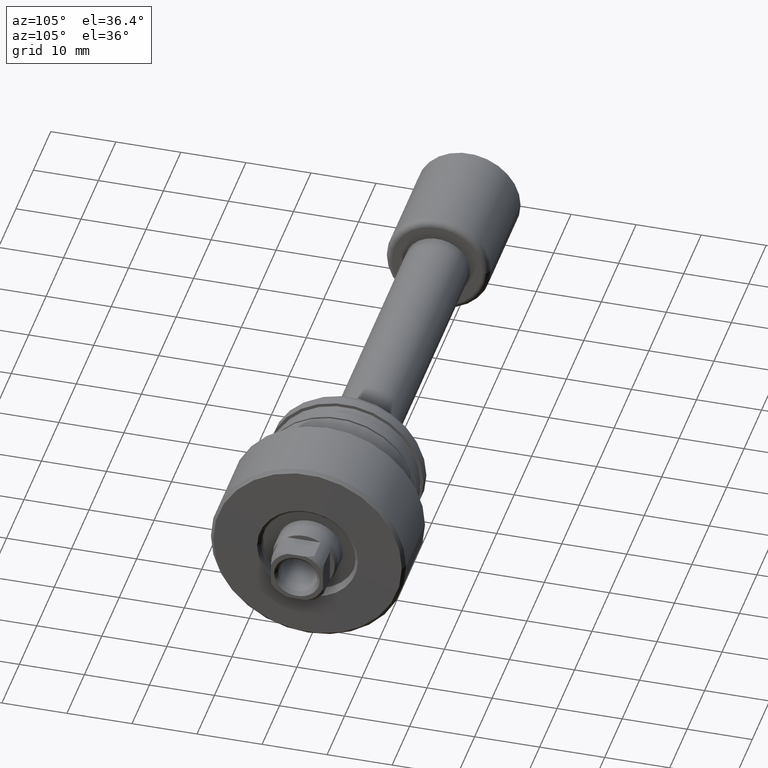
[diagram: clean part render]
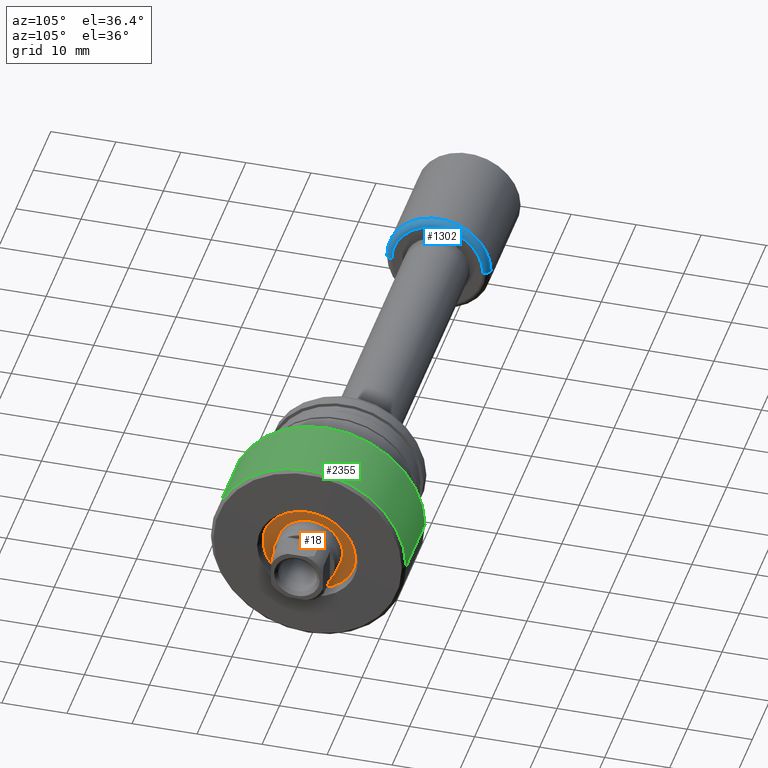
[diagram: same view with three faces highlighted in distinct colors, each labeled with its STEP entity id]
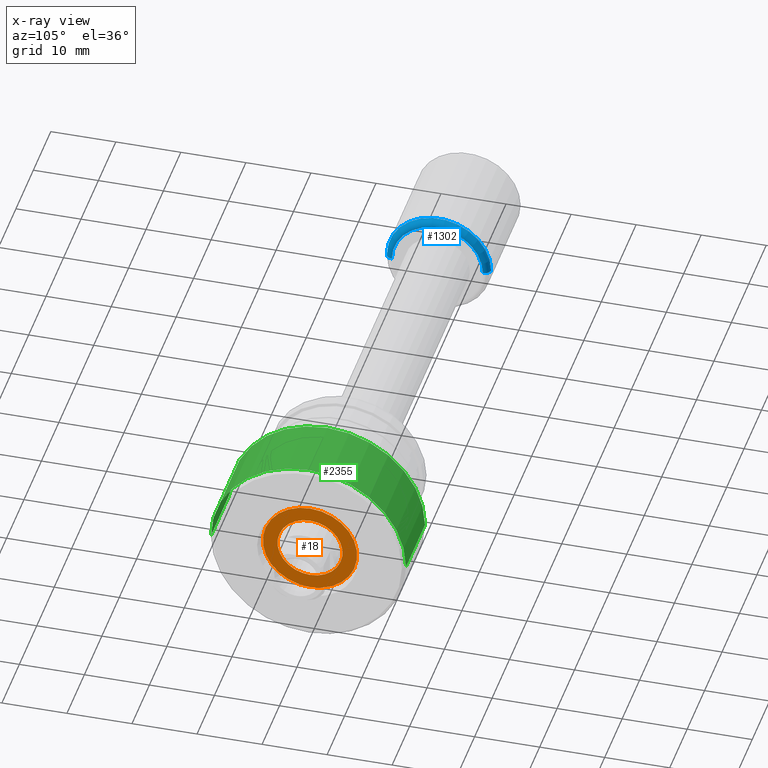
[diagram: x-ray of the same camera — body ghosted, the three highlighted faces saturated]
A machine part, auxiliary view with three faces highlighted in distinct colors.
The next image is the same camera in x-ray (body ghosted, the three faces saturated) — at least one of them is partly hidden behind the body in this view.
Their STEP definitions:

[orange] entity #18 — the highlighted planar face has unit normal (1, 0, 0).
#18 = ADVANCED_FACE ( 'NONE', ( #335, #1860 ), #1824, .T. ) ;
#62 = CARTESIAN_POINT ( 'NONE',  ( -1.500000000000000000, 0.000000000000000000, -5.000000000000000000 ) ) ;
#99 = EDGE_CURVE ( 'NONE', #2229, #590, #2347, .T. ) ;
#113 = ORIENTED_EDGE ( 'NONE', *, *, #844, .F. ) ;
#119 = CIRCLE ( 'NONE', #1274, 5.000000000000000000 ) ;
#141 = DIRECTION ( 'NONE',  ( 0.000000000000000000, 0.000000000000000000, -1.000000000000000000 ) ) ;
#151 = DIRECTION ( 'NONE',  ( 0.000000000000000000, 0.000000000000000000, -1.000000000000000000 ) ) ;
#247 = CARTESIAN_POINT ( 'NONE',  ( -1.500000000000000000, 8.878689293818310074E-16, 7.250000000000000000 ) ) ;
#335 = FACE_BOUND ( 'NONE', #1932, .T. ) ;
#378 = CARTESIAN_POINT ( 'NONE',  ( -1.500000000000000000, 0.000000000000000000, 0.000000000000000000 ) ) ;
#590 = VERTEX_POINT ( 'NONE', #247 ) ;
#617 = AXIS2_PLACEMENT_3D ( 'NONE', #749, #2227, #151 ) ;
#637 = EDGE_CURVE ( 'NONE', #590, #2229, #2445, .T. ) ;
#732 = DIRECTION ( 'NONE',  ( 0.000000000000000000, 0.000000000000000000, -1.000000000000000000 ) ) ;
#749 = CARTESIAN_POINT ( 'NONE',  ( -1.500000000000000000, 0.000000000000000000, 0.000000000000000000 ) ) ;
#802 = CIRCLE ( 'NONE', #1431, 5.000000000000000000 ) ;
#825 = EDGE_LOOP ( 'NONE', ( #1826, #1128 ) ) ;
#844 = EDGE_CURVE ( 'NONE', #2222, #1760, #119, .T. ) ;
#859 = CARTESIAN_POINT ( 'NONE',  ( -1.500000000000000000, 0.000000000000000000, 0.000000000000000000 ) ) ;
#1128 = ORIENTED_EDGE ( 'NONE', *, *, #637, .T. ) ;
#1178 = EDGE_CURVE ( 'NONE', #1760, #2222, #802, .T. ) ;
#1272 = AXIS2_PLACEMENT_3D ( 'NONE', #1482, #1695, #732 ) ;
#1274 = AXIS2_PLACEMENT_3D ( 'NONE', #859, #1777, #1610 ) ;
#1431 = AXIS2_PLACEMENT_3D ( 'NONE', #1859, #1490, #141 ) ;
#1482 = CARTESIAN_POINT ( 'NONE',  ( -1.500000000000000000, 0.000000000000000000, 0.000000000000000000 ) ) ;
#1490 = DIRECTION ( 'NONE',  ( 1.000000000000000000, 0.000000000000000000, 0.000000000000000000 ) ) ;
#1591 = ORIENTED_EDGE ( 'NONE', *, *, #1178, .F. ) ;
#1598 = CARTESIAN_POINT ( 'NONE',  ( -1.500000000000000000, 6.123233995736766282E-16, 5.000000000000000000 ) ) ;
#1610 = DIRECTION ( 'NONE',  ( 0.000000000000000000, 0.000000000000000000, -1.000000000000000000 ) ) ;
#1695 = DIRECTION ( 'NONE',  ( 1.000000000000000000, 0.000000000000000000, 0.000000000000000000 ) ) ;
#1732 = AXIS2_PLACEMENT_3D ( 'NONE', #378, #1888, #1922 ) ;
#1760 = VERTEX_POINT ( 'NONE', #1598 ) ;
#1777 = DIRECTION ( 'NONE',  ( 1.000000000000000000, 0.000000000000000000, 0.000000000000000000 ) ) ;
#1824 = PLANE ( 'NONE',  #617 ) ;
#1826 = ORIENTED_EDGE ( 'NONE', *, *, #99, .T. ) ;
#1859 = CARTESIAN_POINT ( 'NONE',  ( -1.500000000000000000, 0.000000000000000000, 0.000000000000000000 ) ) ;
#1860 = FACE_OUTER_BOUND ( 'NONE', #825, .T. ) ;
#1888 = DIRECTION ( 'NONE',  ( 1.000000000000000000, 0.000000000000000000, 0.000000000000000000 ) ) ;
#1922 = DIRECTION ( 'NONE',  ( 0.000000000000000000, 0.000000000000000000, -1.000000000000000000 ) ) ;
#1932 = EDGE_LOOP ( 'NONE', ( #113, #1591 ) ) ;
#1945 = CARTESIAN_POINT ( 'NONE',  ( -1.500000000000000000, 0.000000000000000000, -7.250000000000000000 ) ) ;
#2222 = VERTEX_POINT ( 'NONE', #62 ) ;
#2227 = DIRECTION ( 'NONE',  ( 1.000000000000000000, 0.000000000000000000, 0.000000000000000000 ) ) ;
#2229 = VERTEX_POINT ( 'NONE', #1945 ) ;
#2347 = CIRCLE ( 'NONE', #1732, 7.250000000000000000 ) ;
#2445 = CIRCLE ( 'NONE', #1272, 7.250000000000000000 ) ;

[blue] entity #1302 — the highlighted toroidal blend (fillet) surface has major radius 7 mm and minor (blend) radius 1 mm.
#83 = AXIS2_PLACEMENT_3D ( 'NONE', #411, #1711, #2274 ) ;
#91 = EDGE_LOOP ( 'NONE', ( #2371, #817, #174, #146 ) ) ;
#146 = ORIENTED_EDGE ( 'NONE', *, *, #2017, .F. ) ;
#174 = ORIENTED_EDGE ( 'NONE', *, *, #393, .F. ) ;
#234 = AXIS2_PLACEMENT_3D ( 'NONE', #493, #1097, #706 ) ;
#272 = CARTESIAN_POINT ( 'NONE',  ( 18.40000000000006253, 7.999999999999996447, 9.797174393178821713E-16 ) ) ;
#278 = DIRECTION ( 'NONE',  ( -1.000000000000000000, 0.000000000000000000, 0.000000000000000000 ) ) ;
#283 = TOROIDAL_SURFACE ( 'NONE', #2259, 6.999999999999996447, 1.000000000000000444 ) ;
#312 = CARTESIAN_POINT ( 'NONE',  ( 19.40000000000006253, -6.999999999999996447, 0.000000000000000000 ) ) ;
#393 = EDGE_CURVE ( 'NONE', #2210, #806, #1664, .T. ) ;
#411 = CARTESIAN_POINT ( 'NONE',  ( 19.40000000000006253, 2.074912104813994331E-16, 0.000000000000000000 ) ) ;
#419 = VERTEX_POINT ( 'NONE', #312 ) ;
#493 = CARTESIAN_POINT ( 'NONE',  ( 18.40000000000006253, 1.967957872607087643E-16, 0.000000000000000000 ) ) ;
#531 = DIRECTION ( 'NONE',  ( 1.309811581274509052E-33, -1.224646799147353207E-16, 1.000000000000000000 ) ) ;
#546 = DIRECTION ( 'NONE',  ( 0.000000000000000000, -1.000000000000000000, -1.224646799147353454E-16 ) ) ;
#562 = AXIS2_PLACEMENT_3D ( 'NONE', #2028, #531, #546 ) ;
#610 = CARTESIAN_POINT ( 'NONE',  ( 18.40000000000006253, -6.999999999999996447, 0.000000000000000000 ) ) ;
#611 = AXIS2_PLACEMENT_3D ( 'NONE', #610, #1689, #278 ) ;
#653 = CARTESIAN_POINT ( 'NONE',  ( 19.40000000000006253, 6.999999999999996447, 9.184850993605144000E-16 ) ) ;
#706 = DIRECTION ( 'NONE',  ( 0.000000000000000000, -1.000000000000000000, 0.000000000000000000 ) ) ;
#806 = VERTEX_POINT ( 'NONE', #272 ) ;
#817 = ORIENTED_EDGE ( 'NONE', *, *, #924, .T. ) ;
#924 = EDGE_CURVE ( 'NONE', #1138, #806, #2296, .T. ) ;
#1001 = CARTESIAN_POINT ( 'NONE',  ( 18.40000000000006253, -7.999999999999996447, 0.000000000000000000 ) ) ;
#1003 = EDGE_CURVE ( 'NONE', #419, #1138, #1865, .T. ) ;
#1097 = DIRECTION ( 'NONE',  ( -1.000000000000000000, -1.069542322069065801E-17, -0.000000000000000000 ) ) ;
#1138 = VERTEX_POINT ( 'NONE', #653 ) ;
#1144 = DIRECTION ( 'NONE',  ( -1.000000000000000000, -1.069542322069065801E-17, -0.000000000000000000 ) ) ;
#1170 = FACE_OUTER_BOUND ( 'NONE', #91, .T. ) ;
#1302 = ADVANCED_FACE ( 'NONE', ( #1170 ), #283, .T. ) ;
#1320 = DIRECTION ( 'NONE',  ( 1.069542322069065801E-17, -1.000000000000000000, 0.000000000000000000 ) ) ;
#1363 = CIRCLE ( 'NONE', #611, 1.000000000000000888 ) ;
#1664 = CIRCLE ( 'NONE', #234, 7.999999999999996447 ) ;
#1689 = DIRECTION ( 'NONE',  ( 0.000000000000000000, 0.000000000000000000, -1.000000000000000000 ) ) ;
#1711 = DIRECTION ( 'NONE',  ( -1.000000000000000000, -1.069542322069065801E-17, -0.000000000000000000 ) ) ;
#1865 = CIRCLE ( 'NONE', #83, 6.999999999999996447 ) ;
#2017 = EDGE_CURVE ( 'NONE', #419, #2210, #1363, .T. ) ;
#2028 = CARTESIAN_POINT ( 'NONE',  ( 18.40000000000006253, 6.999999999999996447, 8.572527594031468259E-16 ) ) ;
#2122 = CARTESIAN_POINT ( 'NONE',  ( 18.40000000000006253, 0.000000000000000000, 0.000000000000000000 ) ) ;
#2210 = VERTEX_POINT ( 'NONE', #1001 ) ;
#2259 = AXIS2_PLACEMENT_3D ( 'NONE', #2122, #1144, #1320 ) ;
#2274 = DIRECTION ( 'NONE',  ( 0.000000000000000000, -1.000000000000000000, 0.000000000000000000 ) ) ;
#2296 = CIRCLE ( 'NONE', #562, 1.000000000000000000 ) ;
#2371 = ORIENTED_EDGE ( 'NONE', *, *, #1003, .T. ) ;

[green] entity #2355 — the highlighted cylindrical surface (partial cylindrical patch) has radius 15 mm, axis along (-1, 0, 0).
#25 = EDGE_CURVE ( 'NONE', #909, #2432, #1997, .T. ) ;
#95 = AXIS2_PLACEMENT_3D ( 'NONE', #2050, #185, #953 ) ;
#134 = DIRECTION ( 'NONE',  ( -1.000000000000000000, 6.415603269213350828E-16, -0.000000000000000000 ) ) ;
#137 = CARTESIAN_POINT ( 'NONE',  ( -0.6000000000006998624, -15.00000000000000178, 0.000000000000000000 ) ) ;
#184 = EDGE_CURVE ( 'NONE', #1768, #494, #330, .T. ) ;
#185 = DIRECTION ( 'NONE',  ( -1.000000000000000000, 6.415603269213350828E-16, -0.000000000000000000 ) ) ;
#330 = CIRCLE ( 'NONE', #95, 14.99999999999998934 ) ;
#420 = DIRECTION ( 'NONE',  ( -6.938893903907235280E-16, -1.000000000000000000, 0.000000000000000000 ) ) ;
#494 = VERTEX_POINT ( 'NONE', #513 ) ;
#498 = EDGE_CURVE ( 'NONE', #909, #1768, #908, .T. ) ;
#513 = CARTESIAN_POINT ( 'NONE',  ( -11.50000000000066969, 14.99999999999997691, 0.000000000000000000 ) ) ;
#740 = DIRECTION ( 'NONE',  ( -1.000000000000000000, 6.415603269213350828E-16, -0.000000000000000000 ) ) ;
#758 = DIRECTION ( 'NONE',  ( -1.000000000000000000, 6.415603269213350828E-16, -0.000000000000000000 ) ) ;
#793 = ORIENTED_EDGE ( 'NONE', *, *, #1743, .T. ) ;
#815 = CYLINDRICAL_SURFACE ( 'NONE', #1013, 14.99999999999998579 ) ;
#835 = CARTESIAN_POINT ( 'NONE',  ( -0.6000000000006806555, 14.99999999999996270, 1.836970198721027617E-15 ) ) ;
#857 = CARTESIAN_POINT ( 'NONE',  ( -11.50000000000069100, -15.00000000000000178, 1.836970198721028406E-15 ) ) ;
#908 = LINE ( 'NONE', #1841, #1426 ) ;
#909 = VERTEX_POINT ( 'NONE', #137 ) ;
#953 = DIRECTION ( 'NONE',  ( -6.938893903907233308E-16, -1.000000000000000000, 0.000000000000000000 ) ) ;
#1013 = AXIS2_PLACEMENT_3D ( 'NONE', #1338, #1375, #420 ) ;
#1289 = AXIS2_PLACEMENT_3D ( 'NONE', #2016, #740, #2390 ) ;
#1322 = LINE ( 'NONE', #1704, #2147 ) ;
#1338 = CARTESIAN_POINT ( 'NONE',  ( -30.28002276692732408, 0.000000000000000000, 0.000000000000000000 ) ) ;
#1364 = FACE_OUTER_BOUND ( 'NONE', #2039, .T. ) ;
#1375 = DIRECTION ( 'NONE',  ( -1.000000000000000000, 6.415603269213350828E-16, -0.000000000000000000 ) ) ;
#1426 = VECTOR ( 'NONE', #134, 1000.000000000000000 ) ;
#1704 = CARTESIAN_POINT ( 'NONE',  ( -30.28002276692731343, 14.99999999999998579, 1.836970198721028011E-15 ) ) ;
#1743 = EDGE_CURVE ( 'NONE', #2432, #494, #1322, .T. ) ;
#1768 = VERTEX_POINT ( 'NONE', #857 ) ;
#1794 = ORIENTED_EDGE ( 'NONE', *, *, #184, .F. ) ;
#1821 = ORIENTED_EDGE ( 'NONE', *, *, #498, .F. ) ;
#1841 = CARTESIAN_POINT ( 'NONE',  ( -30.28002276692733474, -14.99999999999998579, 0.000000000000000000 ) ) ;
#1997 = CIRCLE ( 'NONE', #1289, 14.99999999999998224 ) ;
#2016 = CARTESIAN_POINT ( 'NONE',  ( -0.6000000000006902034, -1.904152510938211848E-14, 0.000000000000000000 ) ) ;
#2039 = EDGE_LOOP ( 'NONE', ( #2049, #793, #1794, #1821 ) ) ;
#2049 = ORIENTED_EDGE ( 'NONE', *, *, #25, .T. ) ;
#2050 = CARTESIAN_POINT ( 'NONE',  ( -11.50000000000068034, -1.204851754593957361E-14, 0.000000000000000000 ) ) ;
#2147 = VECTOR ( 'NONE', #758, 1000.000000000000000 ) ;
#2355 = ADVANCED_FACE ( 'NONE', ( #1364 ), #815, .T. ) ;
#2390 = DIRECTION ( 'NONE',  ( -6.432932890080667202E-16, -1.000000000000000000, 0.000000000000000000 ) ) ;
#2432 = VERTEX_POINT ( 'NONE', #835 ) ;